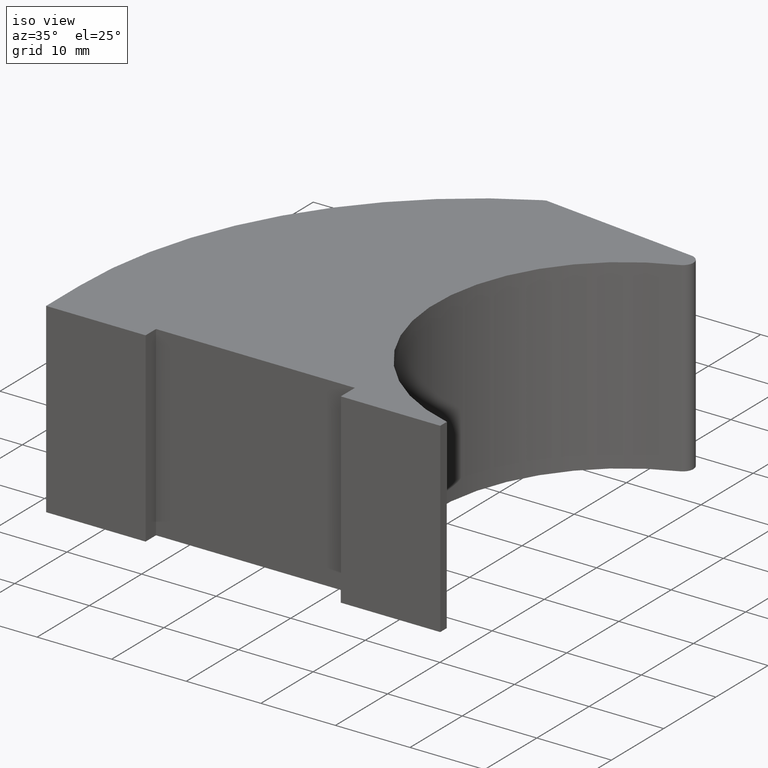
[diagram: clean part render]
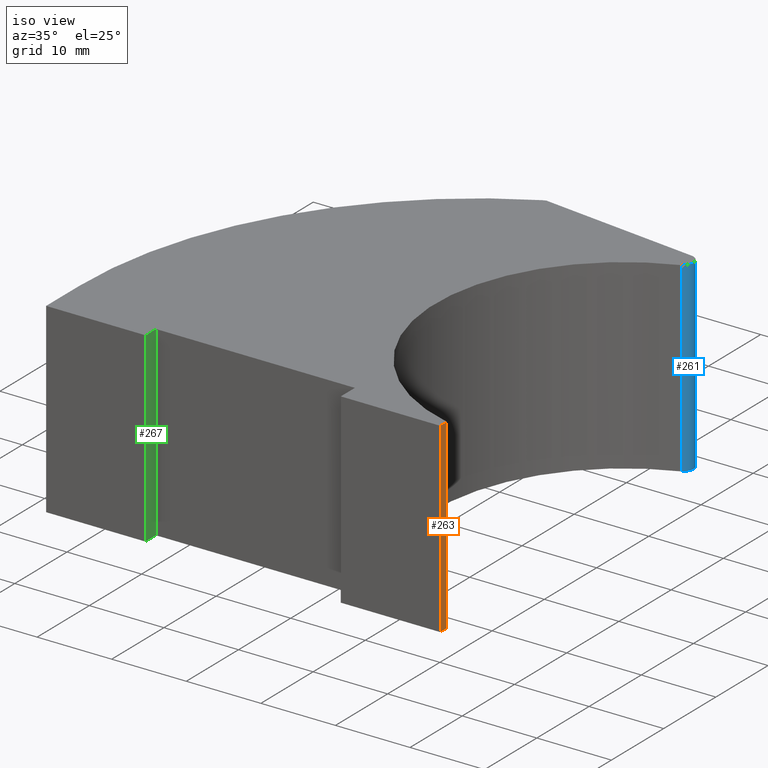
[diagram: same view with three faces highlighted in distinct colors, each labeled with its STEP entity id]
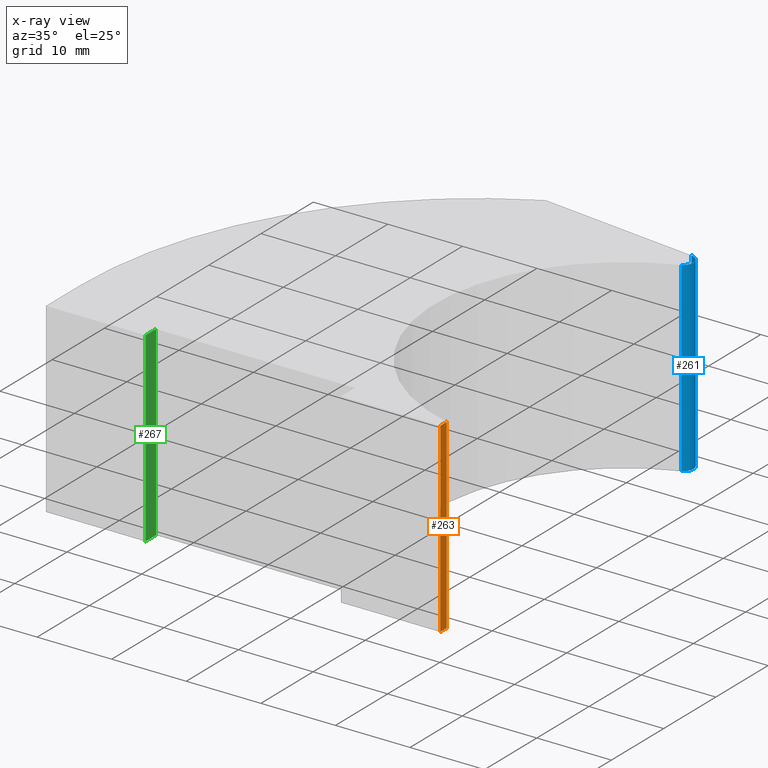
[diagram: x-ray of the same camera — body ghosted, the three highlighted faces saturated]
A machine part, iso view with three faces highlighted in distinct colors.
The next image is the same camera in x-ray (body ghosted, the three faces saturated) — at least one of them is partly hidden behind the body in this view.
Their STEP definitions:

[orange] entity #263 — the highlighted planar face has unit normal (1, 0, 0).
#26=FACE_OUTER_BOUND('',#40,.T.);
#40=EDGE_LOOP('',(#209,#210,#211,#212));
#58=LINE('',#405,#88);
#71=LINE('',#436,#101);
#72=LINE('',#439,#102);
#73=LINE('',#440,#103);
#88=VECTOR('',#328,10.);
#101=VECTOR('',#359,10.);
#102=VECTOR('',#362,10.);
#103=VECTOR('',#363,10.);
#121=VERTEX_POINT('',#402);
#122=VERTEX_POINT('',#404);
#131=VERTEX_POINT('',#434);
#132=VERTEX_POINT('',#438);
#145=EDGE_CURVE('',#122,#121,#58,.T.);
#161=EDGE_CURVE('',#121,#131,#71,.T.);
#162=EDGE_CURVE('',#131,#132,#72,.T.);
#163=EDGE_CURVE('',#122,#132,#73,.T.);
#209=ORIENTED_EDGE('',*,*,#162,.T.);
#210=ORIENTED_EDGE('',*,*,#163,.F.);
#211=ORIENTED_EDGE('',*,*,#145,.T.);
#212=ORIENTED_EDGE('',*,*,#161,.T.);
#249=PLANE('',#306);
#263=ADVANCED_FACE('',(#26),#249,.T.);
#306=AXIS2_PLACEMENT_3D('',#437,#360,#361);
#328=DIRECTION('',(0.,1.,0.));
#359=DIRECTION('',(0.,0.,1.));
#360=DIRECTION('center_axis',(1.,0.,0.));
#361=DIRECTION('ref_axis',(0.,0.,-1.));
#362=DIRECTION('',(0.,-1.,0.));
#363=DIRECTION('',(0.,0.,1.));
#402=CARTESIAN_POINT('',(57.0097959384079,5.59013607775849,-12.5));
#404=CARTESIAN_POINT('',(57.0097959384079,4.34121471579654,-12.5));
#405=CARTESIAN_POINT('',(57.0097959384079,4.34121471579654,-12.5));
#434=CARTESIAN_POINT('',(57.0097959384079,5.59013607775849,12.5));
#436=CARTESIAN_POINT('',(57.0097959384079,5.59013607775849,0.));
#437=CARTESIAN_POINT('Origin',(57.0097959384079,5.59013607775849,0.));
#438=CARTESIAN_POINT('',(57.0097959384079,4.34121471579654,12.5));
#439=CARTESIAN_POINT('',(57.0097959384079,4.34121471579654,12.5));
#440=CARTESIAN_POINT('',(57.0097959384079,4.34121471579654,0.));

[blue] entity #261 — the highlighted cylindrical surface (edge-blend (fillet) strip) has radius 1.428 mm, axis along (0, 0, 1).
#17=CYLINDRICAL_SURFACE('',#302,1.428);
#24=FACE_OUTER_BOUND('',#38,.T.);
#38=EDGE_LOOP('',(#201,#202,#203,#204));
#48=CIRCLE('',#295,1.428);
#51=CIRCLE('',#303,1.428);
#69=LINE('',#428,#99);
#70=LINE('',#432,#100);
#99=VECTOR('',#349,10.);
#100=VECTOR('',#354,10.);
#119=VERTEX_POINT('',#398);
#120=VERTEX_POINT('',#400);
#129=VERTEX_POINT('',#426);
#130=VERTEX_POINT('',#430);
#143=EDGE_CURVE('',#120,#119,#48,.T.);
#157=EDGE_CURVE('',#119,#129,#69,.T.);
#158=EDGE_CURVE('',#129,#130,#51,.T.);
#159=EDGE_CURVE('',#120,#130,#70,.T.);
#201=ORIENTED_EDGE('',*,*,#158,.T.);
#202=ORIENTED_EDGE('',*,*,#159,.F.);
#203=ORIENTED_EDGE('',*,*,#143,.T.);
#204=ORIENTED_EDGE('',*,*,#157,.T.);
#261=ADVANCED_FACE('',(#24),#17,.T.);
#295=AXIS2_PLACEMENT_3D('',#401,#324,#325);
#302=AXIS2_PLACEMENT_3D('',#429,#350,#351);
#303=AXIS2_PLACEMENT_3D('',#431,#352,#353);
#324=DIRECTION('center_axis',(0.,0.,1.));
#325=DIRECTION('ref_axis',(0.494282654763418,-0.869301246519311,0.));
#349=DIRECTION('',(0.,0.,1.));
#350=DIRECTION('center_axis',(0.,0.,1.));
#351=DIRECTION('ref_axis',(0.494282654763418,-0.869301246519311,0.));
#352=DIRECTION('center_axis',(0.,0.,-1.));
#353=DIRECTION('ref_axis',(0.494282654763418,-0.869301246519311,0.));
#354=DIRECTION('',(0.,0.,1.));
#398=CARTESIAN_POINT('',(54.2357104903102,56.4082361029203,-12.5));
#400=CARTESIAN_POINT('',(54.7703331380824,53.7491750428836,-12.5));
#401=CARTESIAN_POINT('Origin',(54.0644975070802,54.9905372229132,-12.5));
#426=CARTESIAN_POINT('',(54.2357104903102,56.4082361029203,12.5));
#428=CARTESIAN_POINT('',(54.2357104903102,56.4082361029203,0.));
#429=CARTESIAN_POINT('Origin',(54.0644975070802,54.9905372229132,0.));
#430=CARTESIAN_POINT('',(54.7703331380824,53.7491750428836,12.5));
#431=CARTESIAN_POINT('Origin',(54.0644975070802,54.9905372229132,12.5));
#432=CARTESIAN_POINT('',(54.7703331380824,53.7491750428836,0.));

[green] entity #267 — the highlighted planar face has unit normal (1, 0, 0).
#30=FACE_OUTER_BOUND('',#44,.T.);
#44=EDGE_LOOP('',(#225,#226,#227,#228));
#53=LINE('',#389,#83);
#79=LINE('',#452,#109);
#80=LINE('',#455,#110);
#81=LINE('',#456,#111);
#83=VECTOR('',#317,10.);
#109=VECTOR('',#375,10.);
#110=VECTOR('',#378,10.);
#111=VECTOR('',#379,10.);
#113=VERTEX_POINT('',#387);
#114=VERTEX_POINT('',#388);
#135=VERTEX_POINT('',#450);
#136=VERTEX_POINT('',#454);
#137=EDGE_CURVE('',#113,#114,#53,.T.);
#169=EDGE_CURVE('',#114,#135,#79,.T.);
#170=EDGE_CURVE('',#135,#136,#80,.T.);
#171=EDGE_CURVE('',#113,#136,#81,.T.);
#225=ORIENTED_EDGE('',*,*,#170,.T.);
#226=ORIENTED_EDGE('',*,*,#171,.F.);
#227=ORIENTED_EDGE('',*,*,#137,.T.);
#228=ORIENTED_EDGE('',*,*,#169,.T.);
#253=PLANE('',#310);
#267=ADVANCED_FACE('',(#30),#253,.T.);
#310=AXIS2_PLACEMENT_3D('',#453,#376,#377);
#317=DIRECTION('',(0.,1.,0.));
#375=DIRECTION('',(0.,0.,1.));
#376=DIRECTION('center_axis',(1.,0.,0.));
#377=DIRECTION('ref_axis',(0.,0.,-1.));
#378=DIRECTION('',(0.,-1.,0.));
#379=DIRECTION('',(0.,0.,1.));
#387=CARTESIAN_POINT('',(17.0097959384079,5.04121471579654,-12.5));
#388=CARTESIAN_POINT('',(17.0097959384079,7.04121471579654,-12.5));
#389=CARTESIAN_POINT('',(17.0097959384079,5.04121471579654,-12.5));
#450=CARTESIAN_POINT('',(17.0097959384079,7.04121471579654,12.5));
#452=CARTESIAN_POINT('',(17.0097959384079,7.04121471579654,0.));
#453=CARTESIAN_POINT('Origin',(17.0097959384079,7.04121471579654,0.));
#454=CARTESIAN_POINT('',(17.0097959384079,5.04121471579654,12.5));
#455=CARTESIAN_POINT('',(17.0097959384079,5.04121471579654,12.5));
#456=CARTESIAN_POINT('',(17.0097959384079,5.04121471579654,0.));